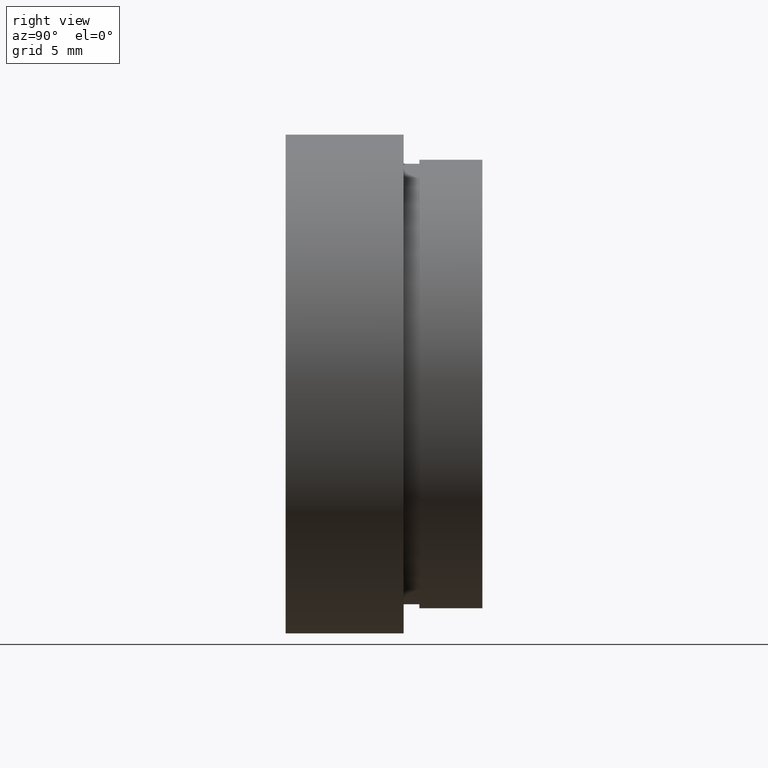
[diagram: clean part render]
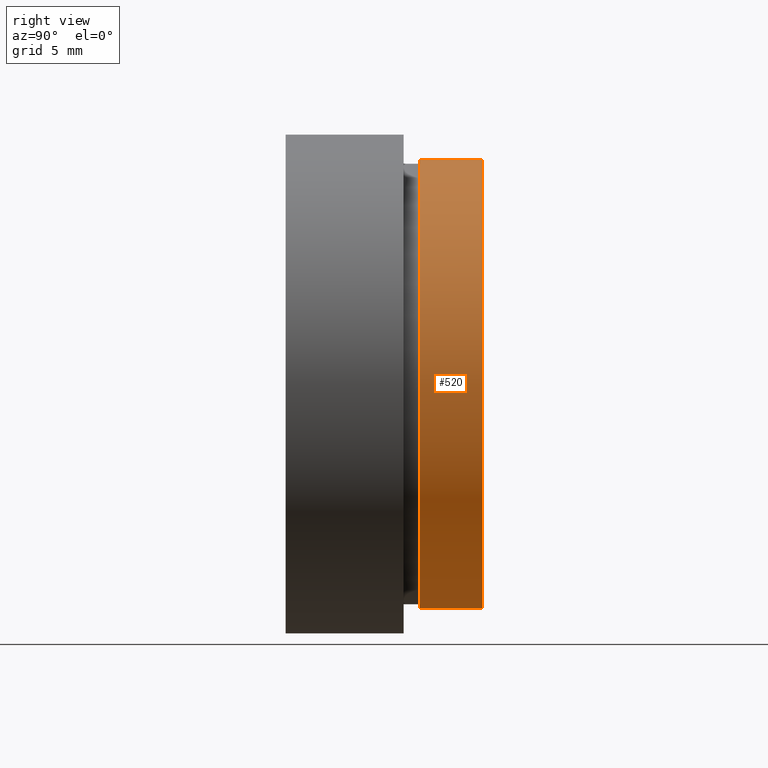
[diagram: same view with one face highlighted and labeled with its STEP entity id]
A machine part, right view. The second image highlights one B-rep face of the part: STEP entity #520.
In plain terms, the highlighted cylindrical surface (partial cylindrical patch) has radius 14.25 mm, axis along (-0, 1, -0).
Its self-contained STEP definition (entity closure, byte-faithful):
#5 = CARTESIAN_POINT ( 'NONE',  ( 1.745121688784980600E-015, 161.3761669434274500, -14.25000000000002000 ) ) ;
#8 = CARTESIAN_POINT ( 'NONE',  ( 1.745121688784980200E-015, 12.49999999999998400, -14.25000000000001800 ) ) ;
#16 = VERTEX_POINT ( 'NONE', #72 ) ;
#36 = CARTESIAN_POINT ( 'NONE',  ( 0.0000000000000000000, 161.3761669434274500, 14.25000000000002000 ) ) ;
#39 = AXIS2_PLACEMENT_3D ( 'NONE', #609, #558, #426 ) ;
#64 = CIRCLE ( 'NONE', #39, 14.25000000000001800 ) ;
#72 = CARTESIAN_POINT ( 'NONE',  ( 0.0000000000000000000, 8.499999999999980500, 14.25000000000002000 ) ) ;
#94 = CARTESIAN_POINT ( 'NONE',  ( 1.745121688784980600E-015, 8.499999999999980500, -14.25000000000002000 ) ) ;
#95 = VECTOR ( 'NONE', #371, 1000.000000000000000 ) ;
#97 = EDGE_CURVE ( 'NONE', #16, #552, #582, .T. ) ;
#104 = CARTESIAN_POINT ( 'NONE',  ( 0.0000000000000000000, 8.499999999999980500, 0.0000000000000000000 ) ) ;
#113 = VECTOR ( 'NONE', #570, 1000.000000000000000 ) ;
#141 = ORIENTED_EDGE ( 'NONE', *, *, #338, .T. ) ;
#159 = CARTESIAN_POINT ( 'NONE',  ( 0.0000000000000000000, 161.3761669434274500, 0.0000000000000000000 ) ) ;
#171 = EDGE_CURVE ( 'NONE', #552, #360, #64, .T. ) ;
#200 = CARTESIAN_POINT ( 'NONE',  ( 0.0000000000000000000, 12.49999999999998400, 14.25000000000001800 ) ) ;
#208 = EDGE_LOOP ( 'NONE', ( #141, #623, #494, #258 ) ) ;
#212 = CIRCLE ( 'NONE', #376, 14.25000000000002000 ) ;
#217 = EDGE_CURVE ( 'NONE', #604, #360, #544, .T. ) ;
#244 = AXIS2_PLACEMENT_3D ( 'NONE', #159, #261, #309 ) ;
#246 = DIRECTION ( 'NONE',  ( -0.0000000000000000000, 1.000000000000000000, -0.0000000000000000000 ) ) ;
#258 = ORIENTED_EDGE ( 'NONE', *, *, #97, .F. ) ;
#261 = DIRECTION ( 'NONE',  ( -0.0000000000000000000, 1.000000000000000000, -0.0000000000000000000 ) ) ;
#301 = DIRECTION ( 'NONE',  ( 0.0000000000000000000, 0.0000000000000000000, 1.000000000000000000 ) ) ;
#309 = DIRECTION ( 'NONE',  ( 0.0000000000000000000, 0.0000000000000000000, 1.000000000000000000 ) ) ;
#338 = EDGE_CURVE ( 'NONE', #16, #604, #212, .T. ) ;
#360 = VERTEX_POINT ( 'NONE', #8 ) ;
#361 = FACE_OUTER_BOUND ( 'NONE', #208, .T. ) ;
#371 = DIRECTION ( 'NONE',  ( -0.0000000000000000000, 1.000000000000000000, -0.0000000000000000000 ) ) ;
#376 = AXIS2_PLACEMENT_3D ( 'NONE', #104, #246, #301 ) ;
#426 = DIRECTION ( 'NONE',  ( 0.0000000000000000000, 0.0000000000000000000, 1.000000000000000000 ) ) ;
#456 = CYLINDRICAL_SURFACE ( 'NONE', #244, 14.25000000000002000 ) ;
#494 = ORIENTED_EDGE ( 'NONE', *, *, #171, .F. ) ;
#520 = ADVANCED_FACE ( 'NONE', ( #361 ), #456, .T. ) ;
#544 = LINE ( 'NONE', #5, #113 ) ;
#552 = VERTEX_POINT ( 'NONE', #200 ) ;
#558 = DIRECTION ( 'NONE',  ( -0.0000000000000000000, 1.000000000000000000, -0.0000000000000000000 ) ) ;
#570 = DIRECTION ( 'NONE',  ( -0.0000000000000000000, 1.000000000000000000, -0.0000000000000000000 ) ) ;
#582 = LINE ( 'NONE', #36, #95 ) ;
#604 = VERTEX_POINT ( 'NONE', #94 ) ;
#609 = CARTESIAN_POINT ( 'NONE',  ( 0.0000000000000000000, 12.49999999999998400, 0.0000000000000000000 ) ) ;
#623 = ORIENTED_EDGE ( 'NONE', *, *, #217, .T. ) ;